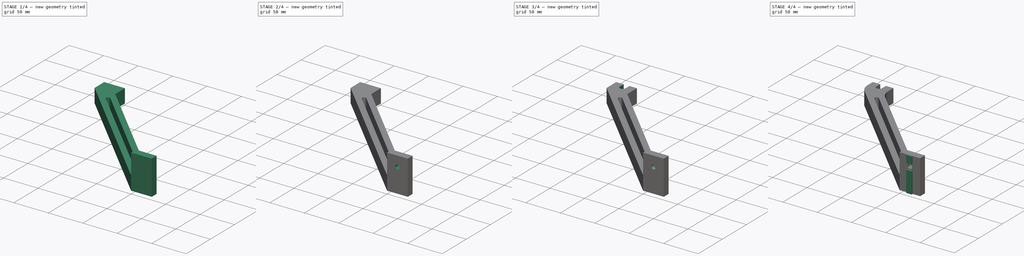
[diagram: build sequence overview — one tinted view per stage of 4, left to right]
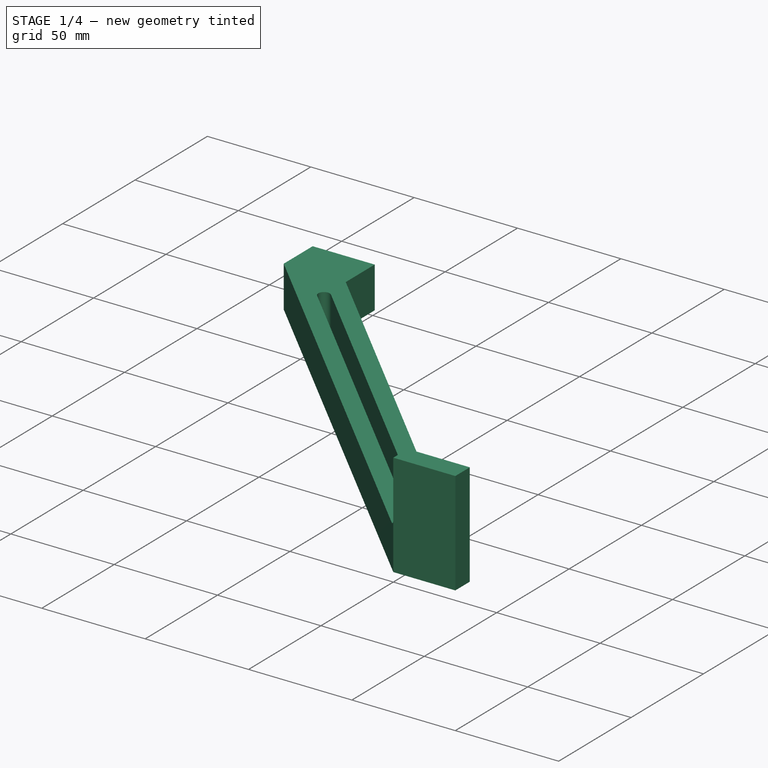
[diagram: stage 1 of 4 — iso view after this stage's code; geometry added in this stage tinted green]
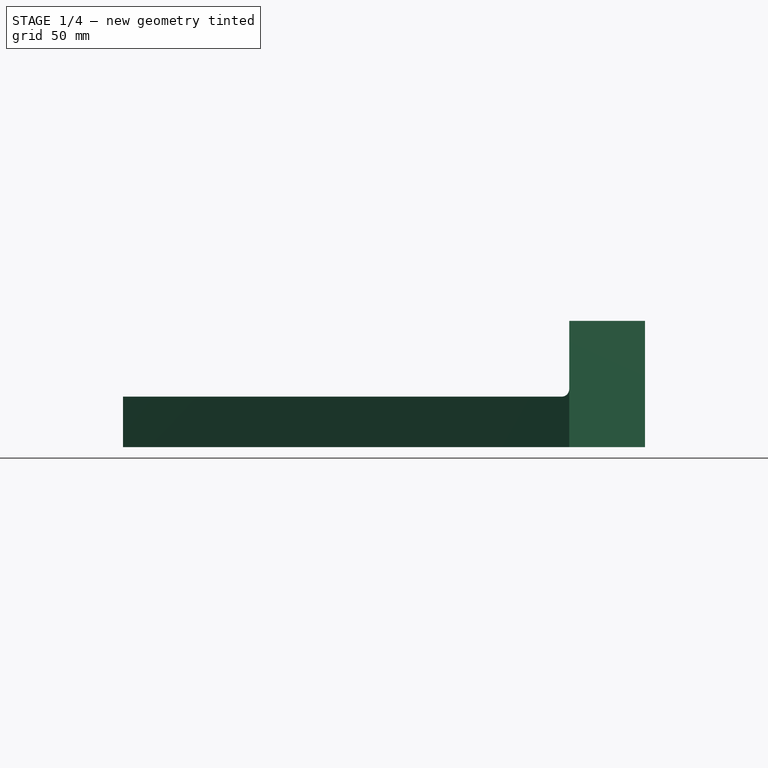
[diagram: stage 1 of 4 — front view after this stage's code; geometry added in this stage tinted green]
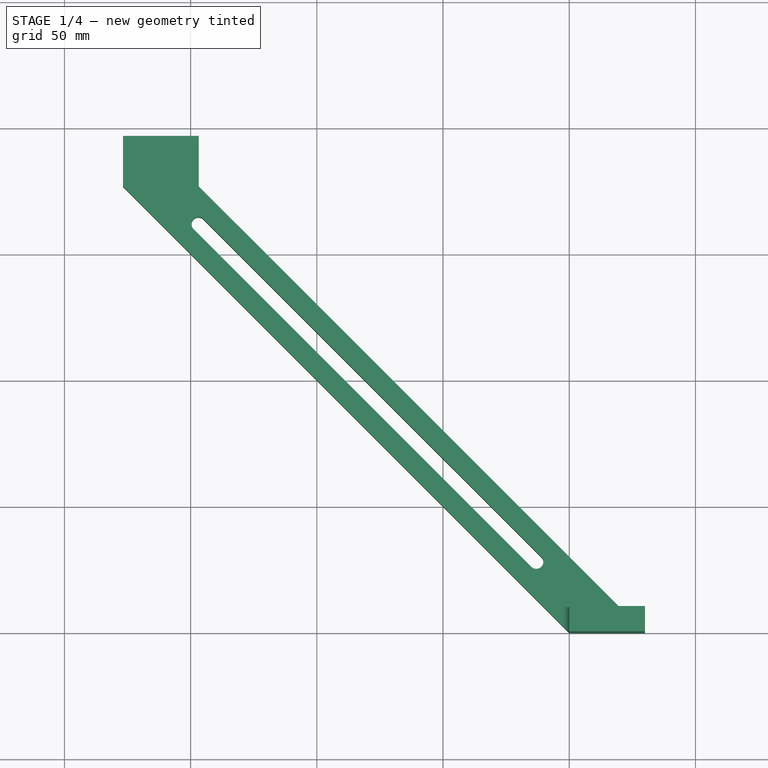
[diagram: stage 1 of 4 — top view after this stage's code; geometry added in this stage tinted green]
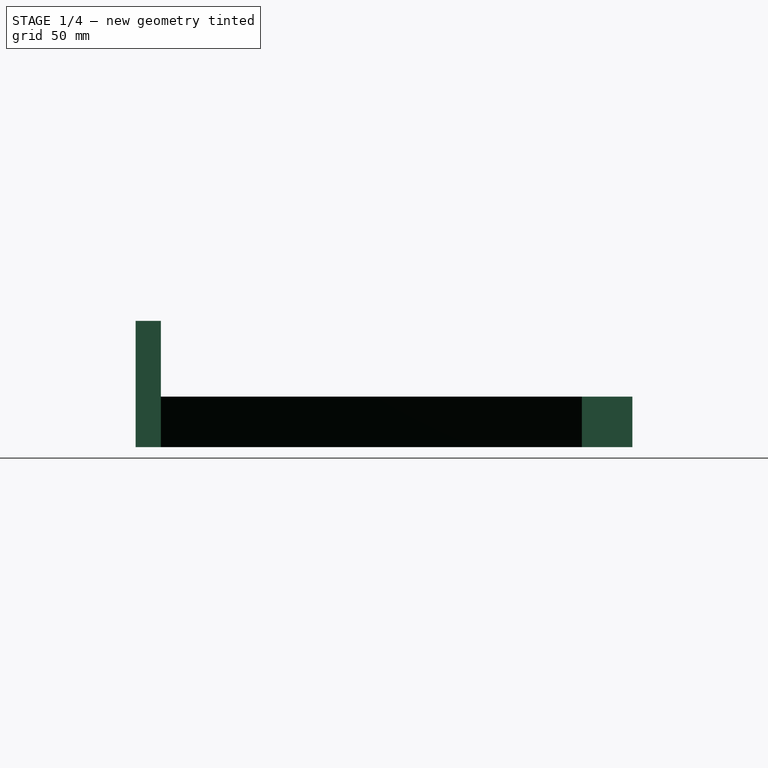
[diagram: stage 1 of 4 — right view after this stage's code; geometry added in this stage tinted green]
FCSTD DOCUMENT  (FreeCAD 0.19R)
Label: spool-holder
License: All rights reserved
LicenseURL: http://en.wikipedia.org/wiki/All_rights_reserved
objects: Sketcher::SketchObject×6, PartDesign::Fillet×5, PartDesign::Pad×3, PartDesign::Pocket×3, PartDesign::Body×1
note: 29 computed .brp shape members not serialized (recipe doc carries the construction recipe); baked Part::Feature solids carry a one-line shape summary decoded from their .brp

FEATURE [Sketcher::SketchObject] Sketch
  FullyConstrained = false
  MapMode = 5
  Support = -> [XY_Plane]
  sketch-geometry (12):
    g0: LineSegment StartX=-146.777 StartY=176.777 StartZ=0 EndX=30 EndY=0 EndZ=0
    g1: LineSegment StartX=30 StartY=0 StartZ=0 EndX=0 EndY=0 EndZ=0
    g2: LineSegment StartX=0 StartY=0 StartZ=0 EndX=-176.777 EndY=176.777 EndZ=0
    g3: LineSegment StartX=-176.777 StartY=176.777 StartZ=0 EndX=-176.777 EndY=196.777 EndZ=0
    g4: LineSegment StartX=-176.777 StartY=196.777 StartZ=0 EndX=-146.777 EndY=196.777 EndZ=0
    g5: LineSegment StartX=-146.777 StartY=196.777 StartZ=0 EndX=-146.777 EndY=176.777 EndZ=0
    g6: LineSegment StartX=-176.777 StartY=176.777 StartZ=0 EndX=-146.777 EndY=176.777 EndZ=0
    g7: ArcOfCircle CenterX=-146.849 CenterY=161.849 CenterZ=0 NormalX=0 NormalY=0 NormalZ=1 AngleXU=0 Radius=2.7886 StartAngle=0.785398 EndAngle=3.92699
    g8: ArcOfCircle CenterX=-13.0423 CenterY=28.0423 CenterZ=0 NormalX=0 NormalY=0 NormalZ=1 AngleXU=0 Radius=2.7886 StartAngle=3.92699 EndAngle=7.06858
    g9: LineSegment StartX=-148.821 StartY=159.877 StartZ=0 EndX=-15.0141 EndY=26.0704 EndZ=0
    g10: LineSegment StartX=-144.877 StartY=163.821 StartZ=0 EndX=-11.0704 EndY=30.0141 EndZ=0
    g11: LineSegment StartX=-161.777 StartY=176.777 StartZ=0 EndX=15 EndY=0 EndZ=0
  constraints (30):
    c: PointOnObject(g0,g-1)
    c: Coincident(g0,g1)
    c: Coincident(g1,g-1)
    c: Coincident(g1,g2)
    c: Coincident(g2,g3)
    c: Vertical(g3)
    c: Coincident(g3,g4)
    c: Horizontal(g4)
    c: Coincident(g4,g5)
    c: Coincident(g5,g0)
    c: Vertical(g5)
    c: Coincident(g6,g2)
    c: Coincident(g6,g0)
    c: Horizontal(g6)
    c: Angle(g-1,g2) = 2.35619
    c: Parallel(g2,g0)
    c: Distance(g2) = 250
    c: DistanceY(g3,g3) = 20
    c: Tangent(g7,g10) = 1.5708
    c: Tangent(g7,g9) = -1.5708
    c: Tangent(g9,g8) = -1.5708
    c: Tangent(g10,g8) = 1.5708
    c: Equal(g7,g8)
    c: Parallel(g9,g2)
    c: DistanceX(g1,g1) = 30
    c: PointOnObject(g11,g6)
    c: PointOnObject(g11,g1)
    c: Distance(g11,g0) = 15
    c: Distance(g11,g0) = 15
    c: PointOnObject(g7,g11)
FEATURE [PartDesign::Pad] Pad
  Direction = (1,1,1)
  Length = 20
  Length2 = 100
  Profile = -> Sketch
  Type = 0
FEATURE [Sketcher::SketchObject] Sketch001
  ExternalGeometry = -> [Pad]
  FullyConstrained = true
  MapMode = 5
  Placement = pos=(0,0,20) rot=(0,0,1;0rad)
  Support = -> [Pad]
  sketch-geometry (4):
    g0: LineSegment StartX=0 StartY=0 StartZ=0 EndX=0 EndY=10 EndZ=0
    g1: LineSegment StartX=0 StartY=10 StartZ=0 EndX=30 EndY=10 EndZ=0
    g2: LineSegment StartX=30 StartY=10 StartZ=0 EndX=30 EndY=0 EndZ=0
    g3: LineSegment StartX=30 StartY=0 StartZ=0 EndX=0 EndY=0 EndZ=0
  constraints (10):
    c: Coincident(g-1,g0)
    c: PointOnObject(g0,g-2)
    c: Coincident(g0,g1)
    c: Horizontal(g1)
    c: Coincident(g1,g2)
    c: Coincident(g2,g-5)
    c: Vertical(g2)
    c: Coincident(g2,g3)
    c: Coincident(g3,g0)
    c: DistanceY(g2,g2) = 10
FEATURE [PartDesign::Pad] Pad001
  BaseFeature = -> Pad
  Direction = (1,1,1)
  Length = 30
  Length2 = 20
  Profile = -> Sketch001
  Type = 4
FEATURE [PartDesign::Fillet] Fillet
  Base = -> Pad001 [Edge24]
  BaseFeature = -> Pad001
  Radius = 3
  Refine = true
  SupportTransform = false
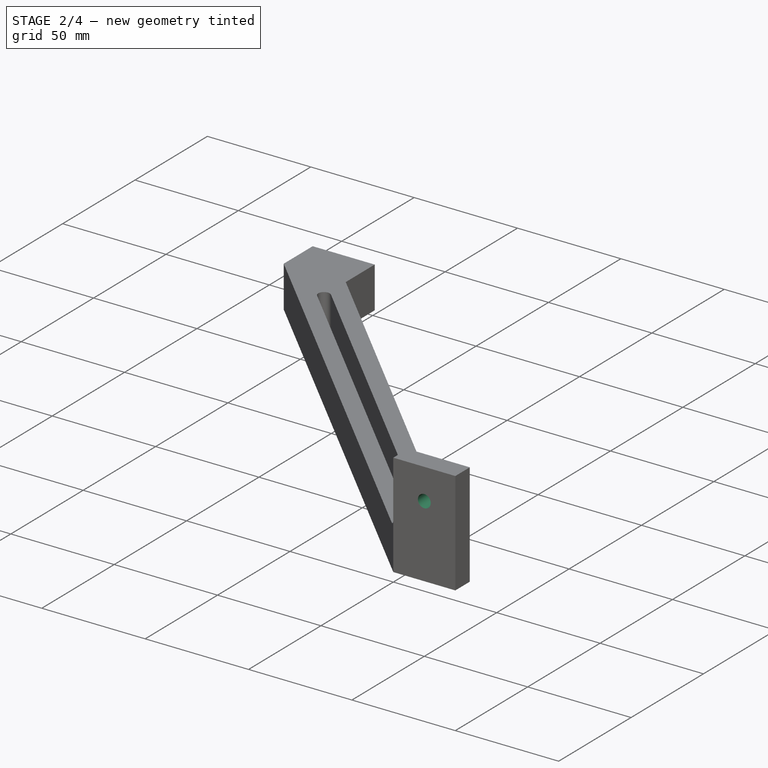
[diagram: stage 2 of 4 — iso view after this stage's code; geometry added in this stage tinted green]
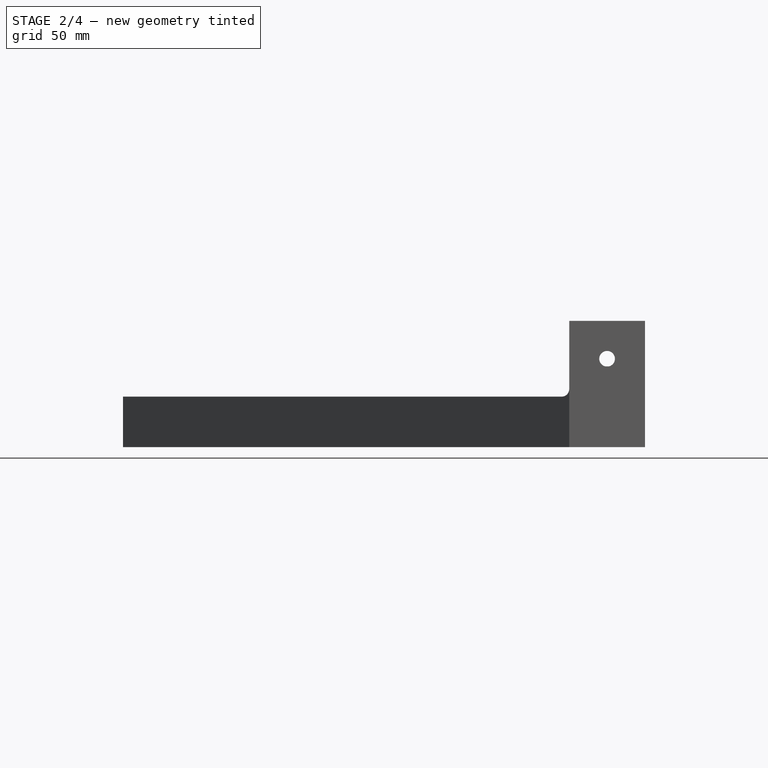
[diagram: stage 2 of 4 — front view after this stage's code; geometry added in this stage tinted green]
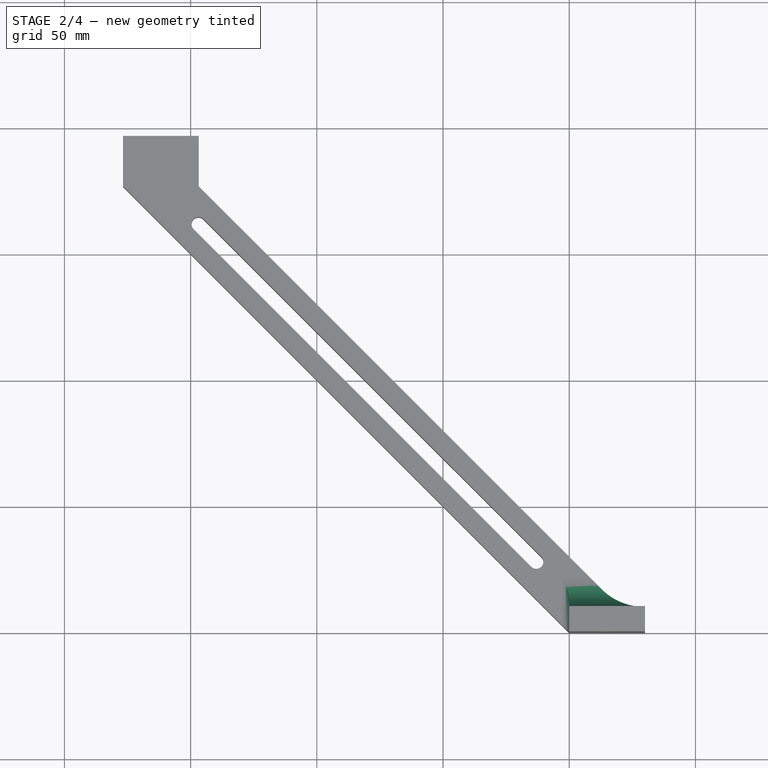
[diagram: stage 2 of 4 — top view after this stage's code; geometry added in this stage tinted green]
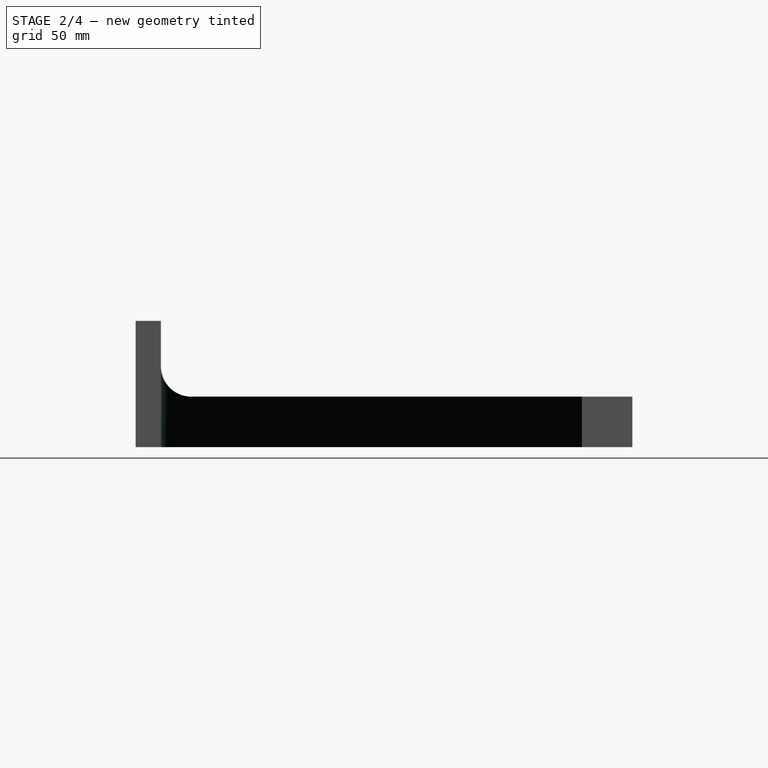
[diagram: stage 2 of 4 — right view after this stage's code; geometry added in this stage tinted green]
FEATURE [PartDesign::Fillet] Fillet001
  Base = -> Fillet [Edge5]
  BaseFeature = -> Fillet
  Radius = 24
  SupportTransform = false
FEATURE [PartDesign::Fillet] Fillet002
  Base = -> Fillet001 [Edge6]
  BaseFeature = -> Fillet001
  Radius = 12
  SupportTransform = false
FEATURE [Sketcher::SketchObject] Sketch002
  FullyConstrained = true
  MapMode = 5
  Placement = pos=(0,10,0) rot=(0,0.707107,0.707107;3.14159rad)
  Support = -> [Fillet002]
  sketch-geometry (1):
    g0: Circle CenterX=-15 CenterY=35 CenterZ=0 NormalX=0 NormalY=0 NormalZ=1 AngleXU=0 Radius=3.1
  constraints (3):
    c: DistanceX(g-2,g0) = -15
    c: DistanceY(g0) = 35
    c: Radius(g0) = 3.1
FEATURE [PartDesign::Pocket] Pocket
  BaseFeature = -> Fillet002
  Length = 5
  Length2 = 100
  Profile = -> Sketch002
  Type = 1
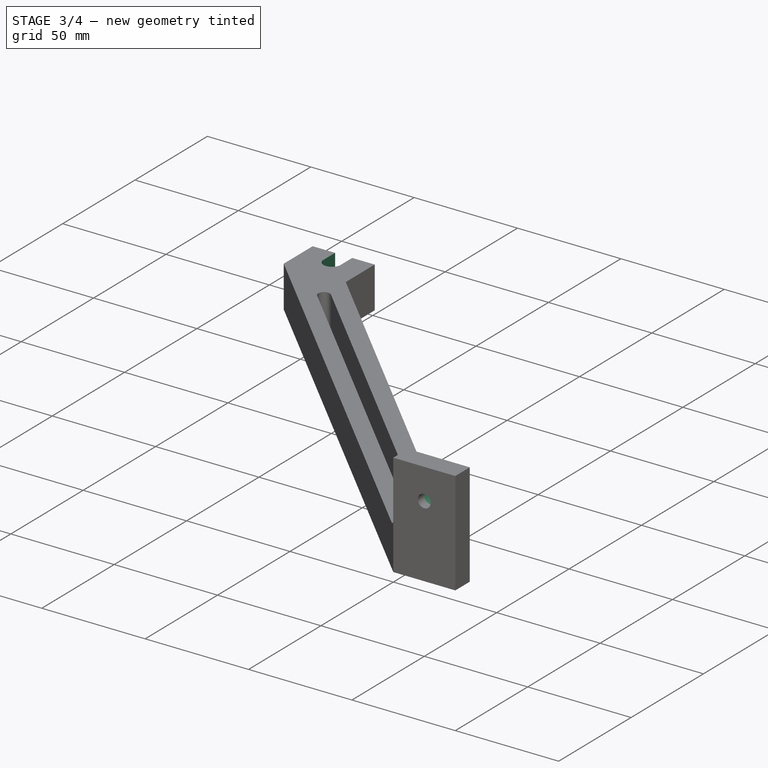
[diagram: stage 3 of 4 — iso view after this stage's code; geometry added in this stage tinted green]
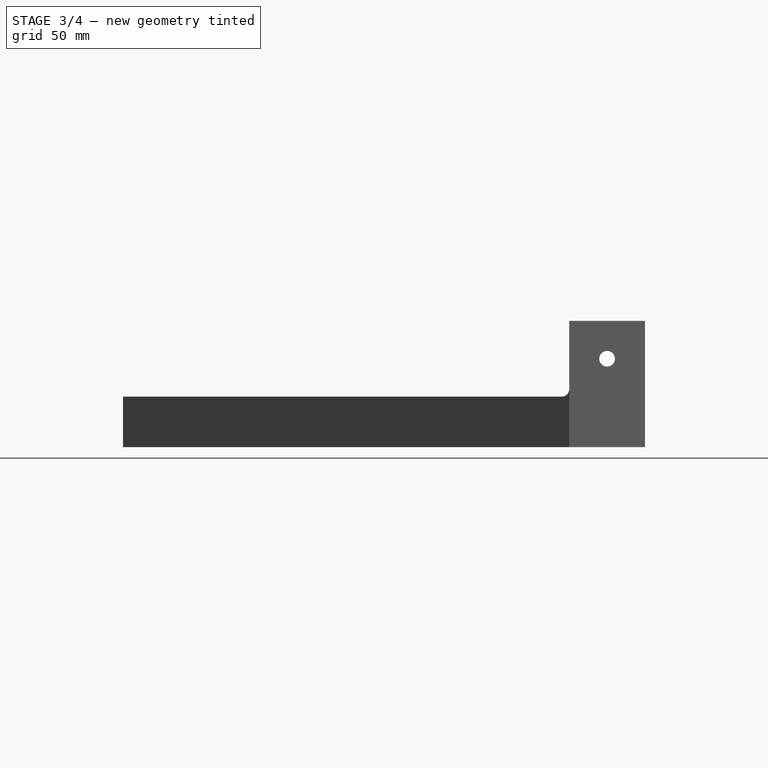
[diagram: stage 3 of 4 — front view after this stage's code; geometry added in this stage tinted green]
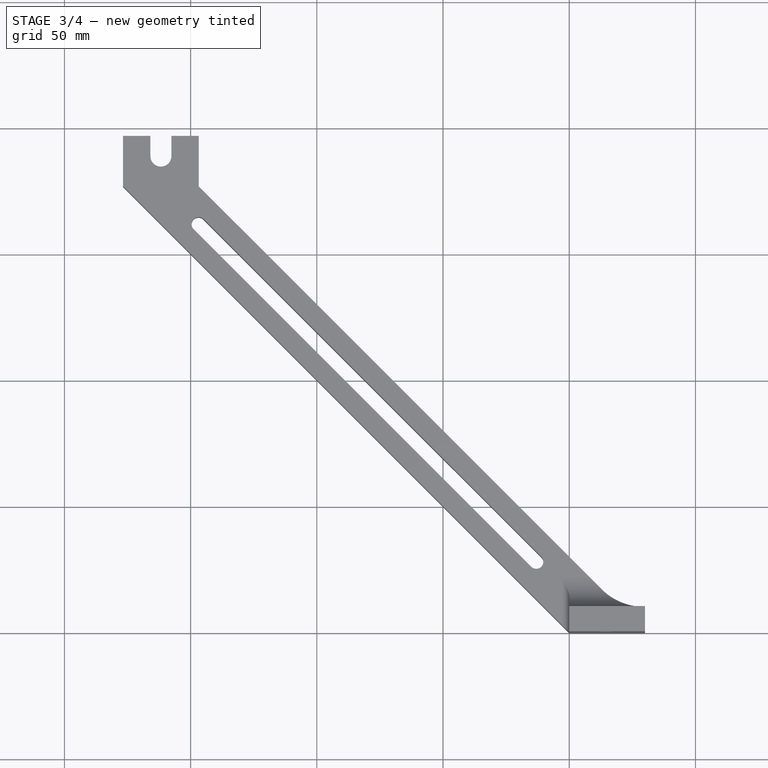
[diagram: stage 3 of 4 — top view after this stage's code; geometry added in this stage tinted green]
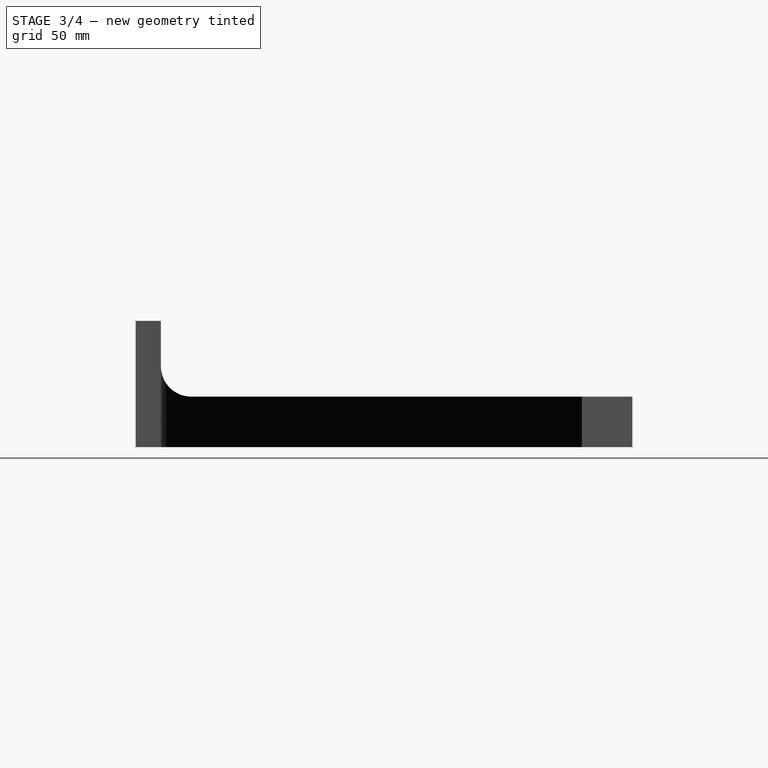
[diagram: stage 3 of 4 — right view after this stage's code; geometry added in this stage tinted green]
FEATURE [Sketcher::SketchObject] Sketch003
  ExternalGeometry = -> [Pocket]
  FullyConstrained = true
  MapMode = 5
  Placement = pos=(0,10,0) rot=(0,0.707107,0.707107;3.14159rad)
  Support = -> [Pocket]
  sketch-geometry (1):
    g0: Circle CenterX=-15 CenterY=35 CenterZ=0 NormalX=0 NormalY=0 NormalZ=1 AngleXU=0 Radius=5.65
  constraints (2):
    c: Coincident(g0,g-3)
    c: Radius(g0) = 5.65
FEATURE [PartDesign::Pocket] Pocket001
  BaseFeature = -> Pocket
  Length = 5.6
  Length2 = 5
  Profile = -> Sketch003
  Type = 4
FEATURE [Sketcher::SketchObject] Sketch004
  ExternalGeometry = -> [Pocket001]
  FullyConstrained = true
  MapMode = 5
  Placement = pos=(0,0,20) rot=(0,0,1;0rad)
  Support = -> [Pocket001]
  sketch-geometry (5):
    g0: ArcOfCircle CenterX=-161.777 CenterY=204.777 CenterZ=0 NormalX=0 NormalY=0 NormalZ=1 AngleXU=0 Radius=4.15 StartAngle=2.36e-14 EndAngle=3.14159
    g1: ArcOfCircle CenterX=-161.777 CenterY=188.777 CenterZ=0 NormalX=0 NormalY=0 NormalZ=1 AngleXU=0 Radius=4.15 StartAngle=3.14159 EndAngle=6.28319
    g2: LineSegment StartX=-165.927 StartY=204.777 StartZ=0 EndX=-165.927 EndY=188.777 EndZ=0
    g3: LineSegment StartX=-157.627 StartY=204.777 StartZ=0 EndX=-157.627 EndY=188.777 EndZ=0
    g4: LineSegment StartX=-161.777 StartY=196.777 StartZ=0 EndX=-161.777 EndY=204.777 EndZ=0
  constraints (11):
    c: Tangent(g0,g3) = 1.5708
    c: Tangent(g0,g2) = -1.5708
    c: Tangent(g2,g1) = -1.5708
    c: Tangent(g3,g1) = 1.5708
    c: Vertical(g2)
    c: PointOnObject(g4,g-3)
    c: Coincident(g4,g0)
    c: Symmetric(g-3,g-3,g4)
    c: Radius(g1) = 4.15
    c: Symmetric(g0,g1,g-3)
    c: DistanceY(g4,g4) = 8
FEATURE [PartDesign::Pocket] Pocket002
  BaseFeature = -> Pocket001
  Length = 5
  Length2 = 100
  Profile = -> Sketch004
  Type = 1
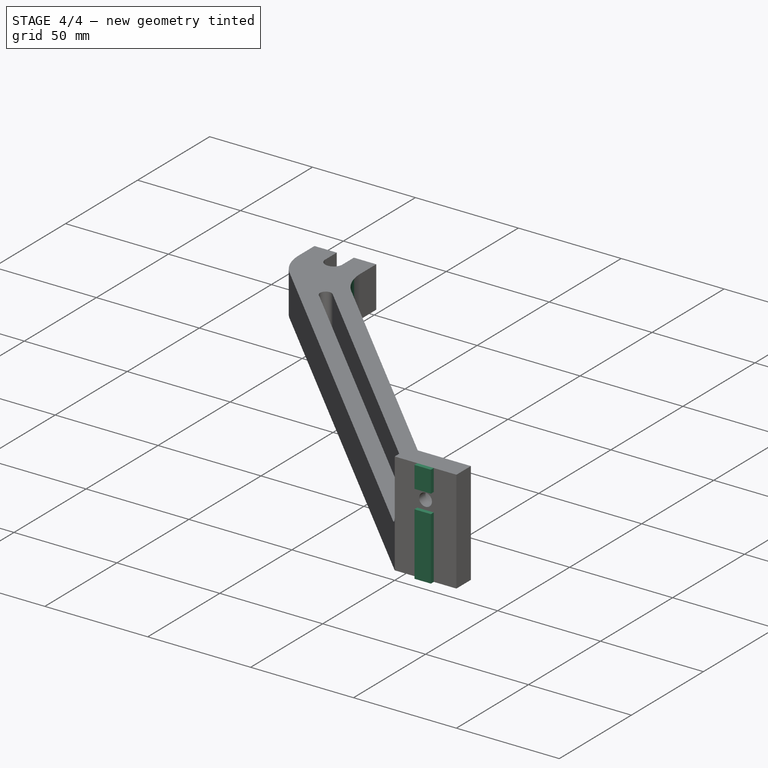
[diagram: stage 4 of 4 — iso view after this stage's code; geometry added in this stage tinted green]
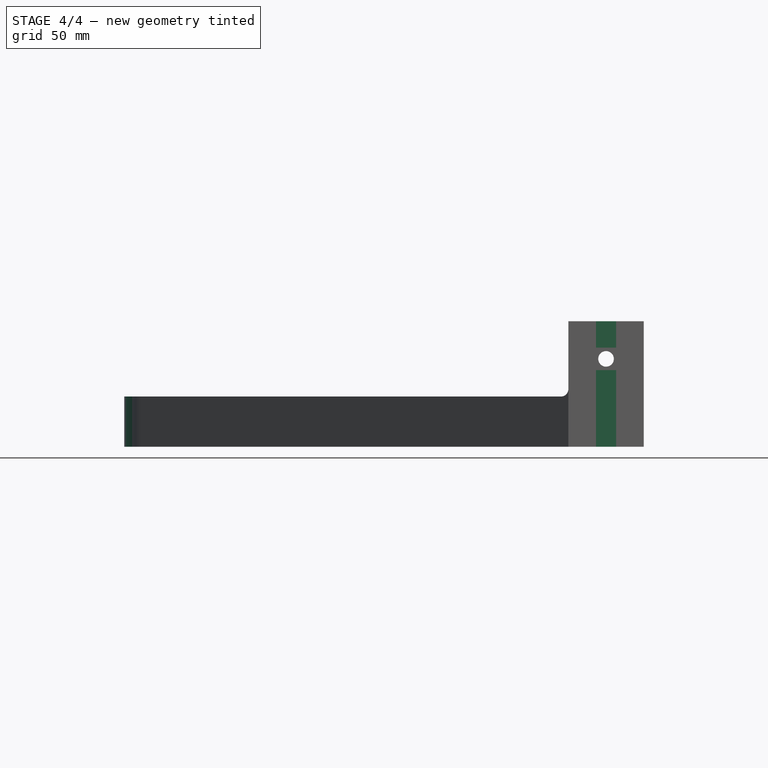
[diagram: stage 4 of 4 — front view after this stage's code; geometry added in this stage tinted green]
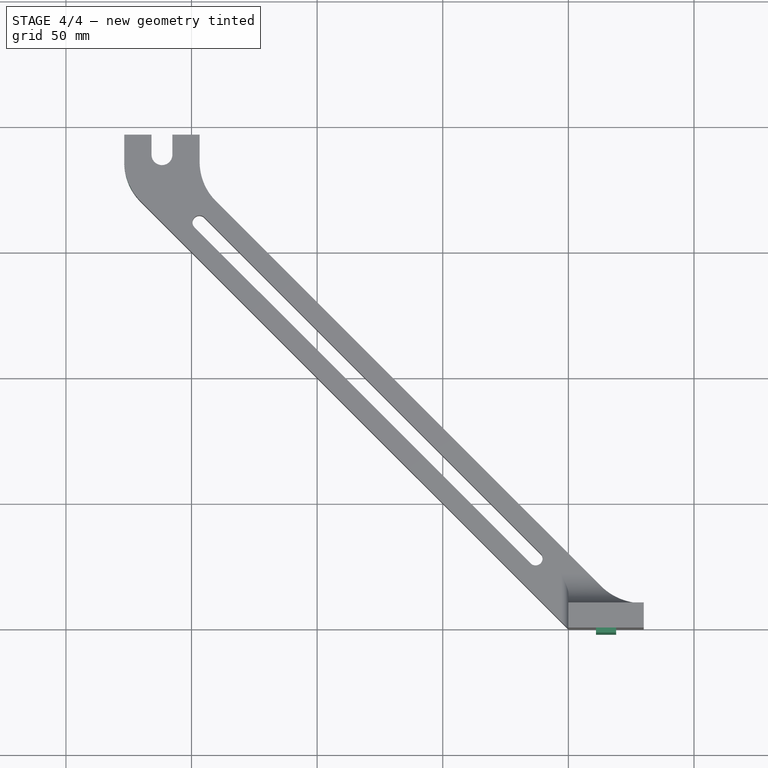
[diagram: stage 4 of 4 — top view after this stage's code; geometry added in this stage tinted green]
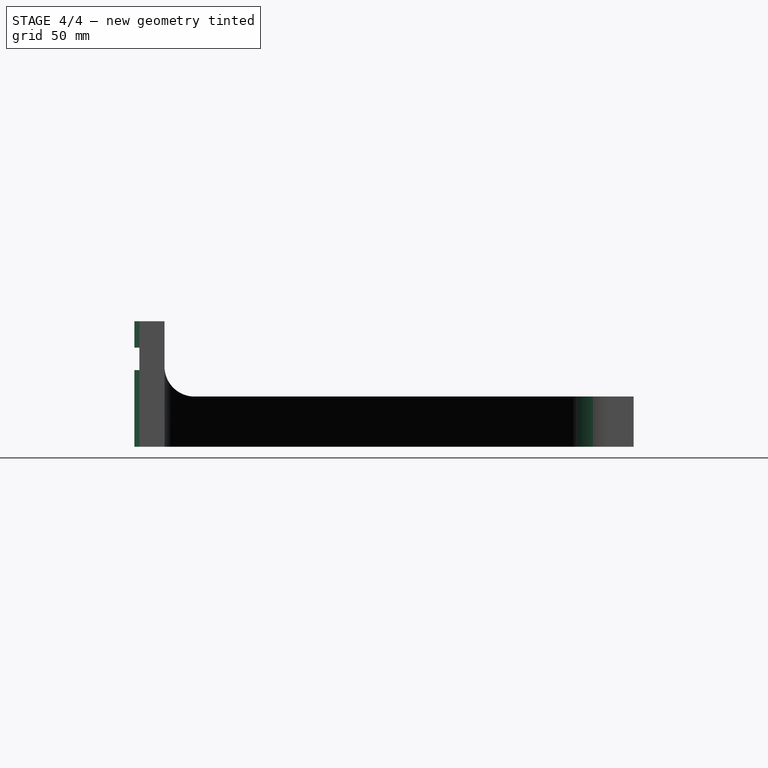
[diagram: stage 4 of 4 — right view after this stage's code; geometry added in this stage tinted green]
FEATURE [PartDesign::Fillet] Fillet003
  Base = -> Pocket002 [Edge44]
  BaseFeature = -> Pocket002
  Radius = 22
  SupportTransform = false
FEATURE [PartDesign::Fillet] Fillet004
  Base = -> Fillet003 [Edge51]
  BaseFeature = -> Fillet003
  Radius = 22
  SupportTransform = false
FEATURE [Sketcher::SketchObject] Sketch005
  ExternalGeometry = -> [Fillet004]
  FullyConstrained = true
  MapMode = 5
  Placement = pos=(0,0,0) rot=(1,0,0;1.5708rad)
  Support = -> [Fillet004]
  sketch-geometry (10):
    g0: LineSegment StartX=15 StartY=35 StartZ=0 EndX=15 EndY=31.9 EndZ=0
    g1: LineSegment StartX=15 StartY=35 StartZ=0 EndX=18.1 EndY=35 EndZ=0
    g2: LineSegment StartX=11 StartY=50 StartZ=0 EndX=19 EndY=50 EndZ=0
    g3: LineSegment StartX=19 StartY=50 StartZ=0 EndX=19 EndY=39.5 EndZ=0
    g4: LineSegment StartX=19 StartY=39.5 StartZ=0 EndX=11 EndY=39.5 EndZ=0
    g5: LineSegment StartX=11 StartY=39.5 StartZ=0 EndX=11 EndY=50 EndZ=0
    g6: LineSegment StartX=11 StartY=30.5 StartZ=0 EndX=19 EndY=30.5 EndZ=0
    g7: LineSegment StartX=19 StartY=30.5 StartZ=0 EndX=19 EndY=0 EndZ=0
    g8: LineSegment StartX=19 StartY=0 StartZ=0 EndX=11 EndY=0 EndZ=0
    g9: LineSegment StartX=11 StartY=0 StartZ=0 EndX=11 EndY=30.5 EndZ=0
  constraints (28):
    c: Coincident(g0,g-3)
    c: PointOnObject(g0,g-3)
    c: Vertical(g0)
    c: Coincident(g1,g0)
    c: PointOnObject(g1,g-3)
    c: Horizontal(g1)
    c: Coincident(g2,g3)
    c: Coincident(g3,g4)
    c: Coincident(g4,g5)
    c: Coincident(g5,g2)
    c: Horizontal(g2)
    c: Horizontal(g4)
    c: Vertical(g3)
    c: Vertical(g5)
    c: Coincident(g6,g7)
    c: Coincident(g7,g8)
    c: Coincident(g8,g9)
    c: Coincident(g9,g6)
    c: Horizontal(g8)
    c: Vertical(g7)
    c: Vertical(g9)
    c: Equal(g6,g4)
    c: DistanceX(g2,g2) = 8
    c: Symmetric(g6,g3,g1)
    c: PointOnObject(g7,g-1)
    c: PointOnObject(g2,g-4)
    c: Distance(g4,g6) = 9
    c: Symmetric(g6,g6,g0)
FEATURE [PartDesign::Pad] Pad002
  BaseFeature = -> Fillet004
  Direction = (1,1,1)
  Length = 2
  Length2 = 100
  Profile = -> Sketch005
  Type = 0
FEATURE [PartDesign::Body] Body
  Group = -> [Sketch,Pad,Sketch001,Pad001,Fillet,Fillet001,Fillet002,Sketch002,Pocket,Sketch003,Pocket001,Sketch004,Pocket002,Fillet003,Fillet004,Sketch005,Pad002]
  Origin = -> Origin
  Tip = -> Pad002
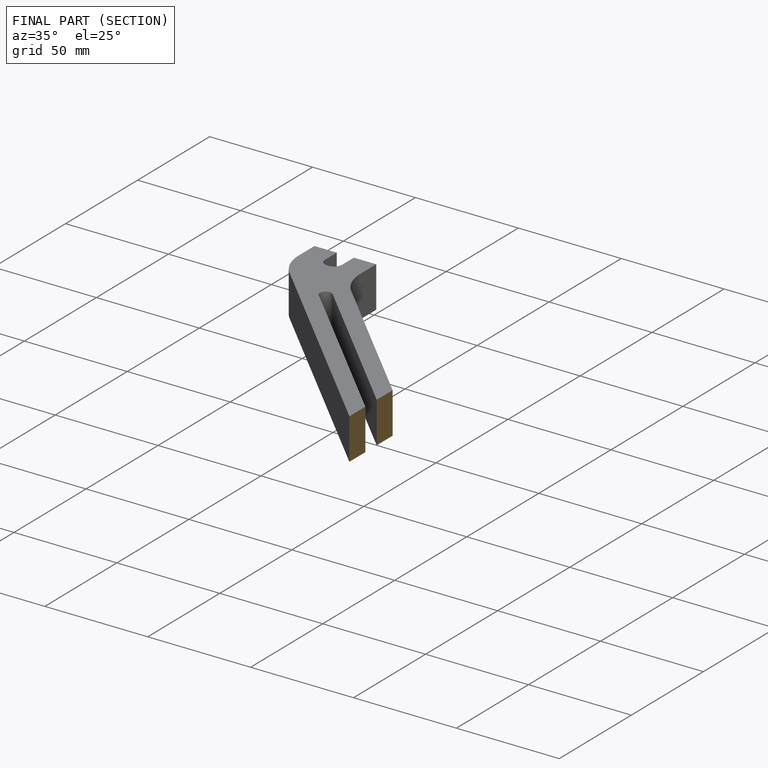
[diagram: finished part — half-section view (interior)]
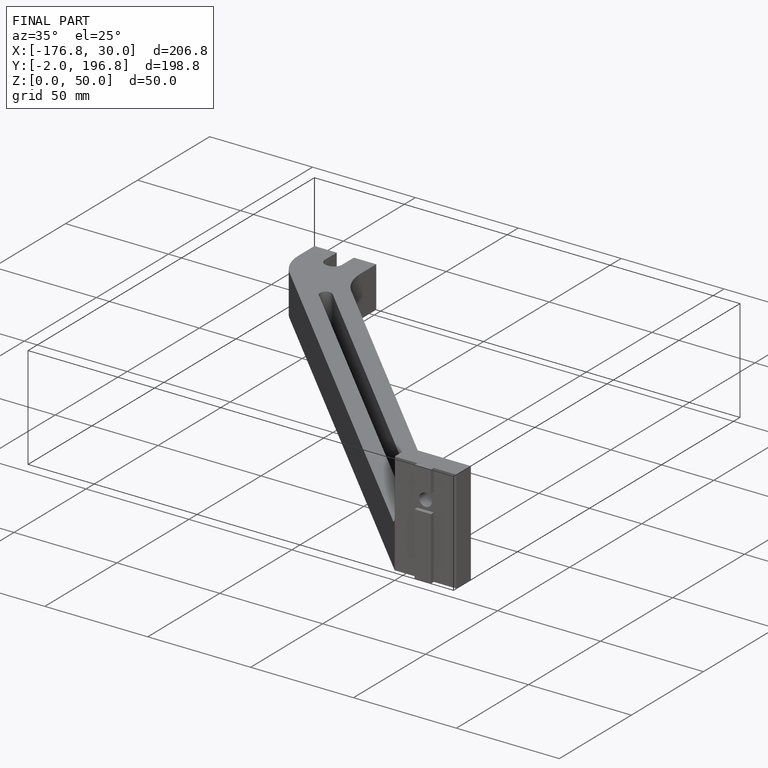
[diagram: finished part — iso view with bounding-box wireframe]
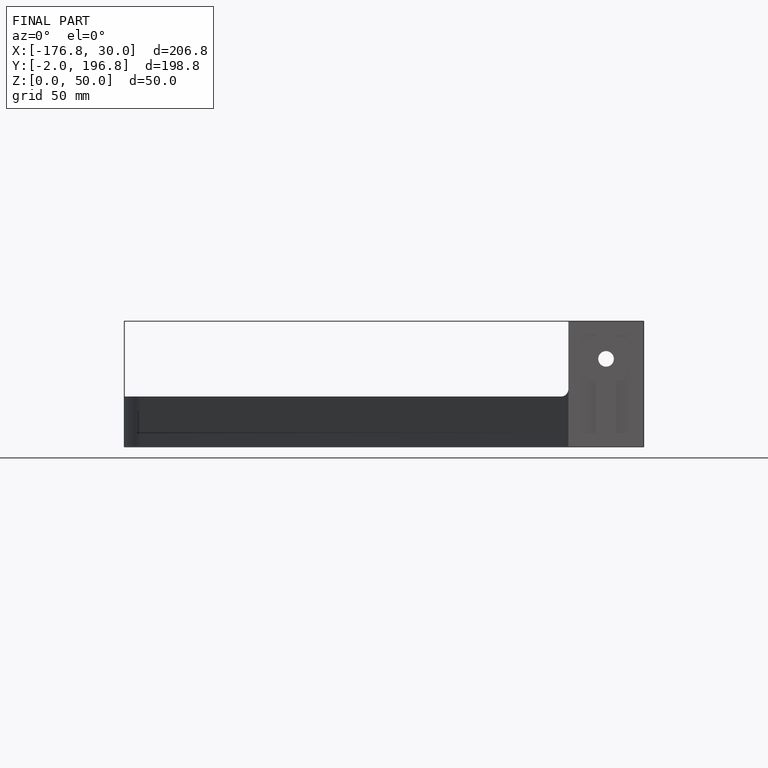
[diagram: finished part — front view with bounding-box wireframe]
